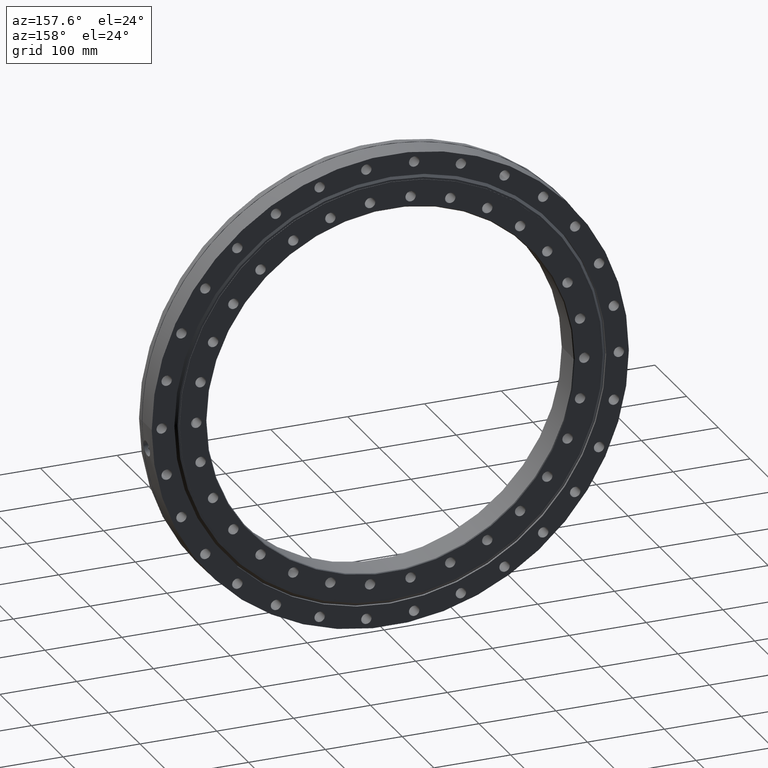
[diagram: clean part render]
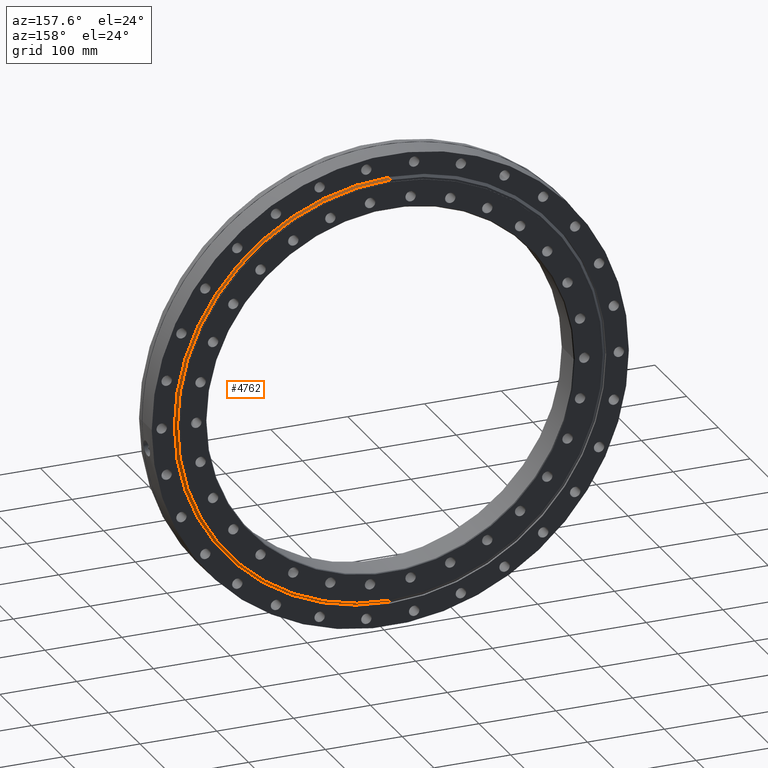
[diagram: same view with one face highlighted and labeled with its STEP entity id]
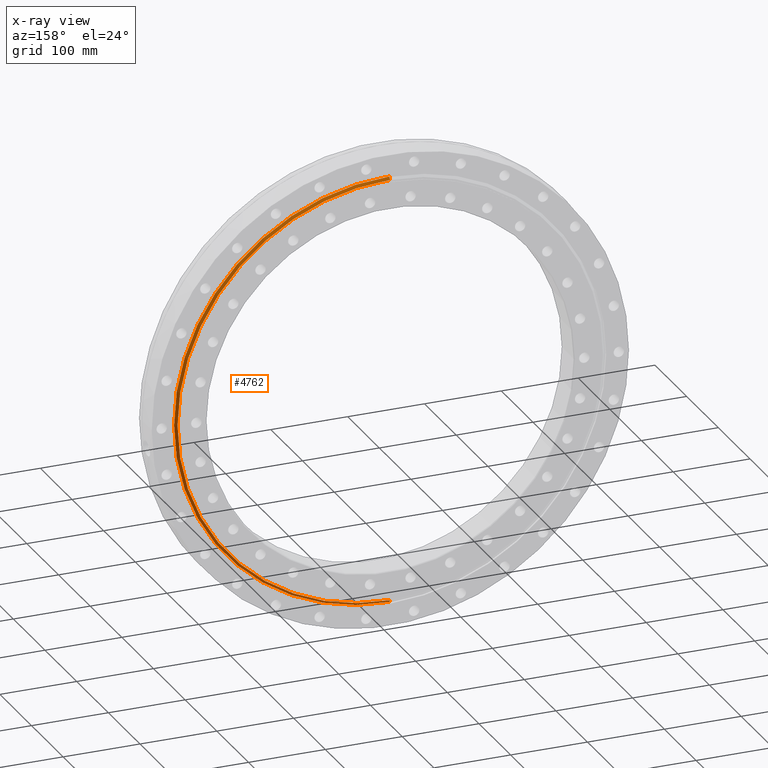
[diagram: x-ray of the same camera — body ghosted, the highlighted face saturated]
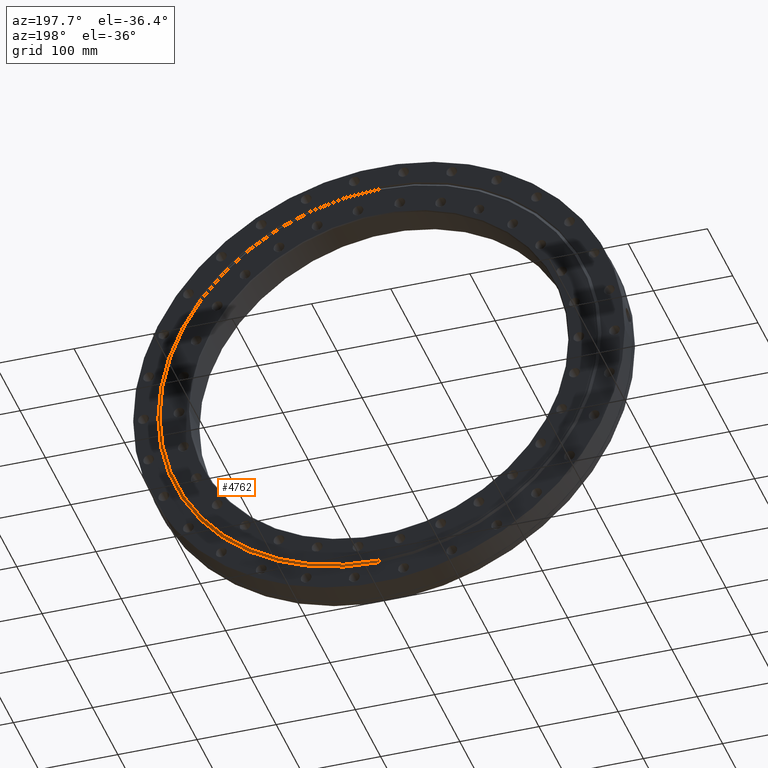
[diagram: same view with one face highlighted and labeled with its STEP entity id]
A machine part, auxiliary view. The second image highlights one B-rep face of the part: STEP entity #4762.
The next image is the same camera in x-ray: the body ghosted, the highlighted face saturated — about 0% of this face is hidden behind the body in this view.
A second angle (auxiliary view) of the same face is appended — the face is thin or edge-on in the first view.
In plain terms, the highlighted conical surface has half-angle 53.077 deg.
Its self-contained STEP definition (entity closure, byte-faithful):
#3 = CARTESIAN_POINT ( 'NONE',  ( 3.389433997422207300E-014, 19.50000000000000400, 276.7682894187992100 ) ) ;
#85 = CIRCLE ( 'NONE', #2446, 280.2282236264777600 ) ;
#198 = DIRECTION ( 'NONE',  ( 9.790312008539385100E-017, -0.6007464156942912100, 0.7994396437695980900 ) ) ;
#243 = EDGE_CURVE ( 'NONE', #518, #2261, #85, .T. ) ;
#518 = VERTEX_POINT ( 'NONE', #5785 ) ;
#616 = CARTESIAN_POINT ( 'NONE',  ( 0.0000000000000000000, 19.50000000000000400, -276.7682894187992100 ) ) ;
#687 = CIRCLE ( 'NONE', #1833, 276.7682894187992100 ) ;
#823 = VERTEX_POINT ( 'NONE', #616 ) ;
#824 = DIRECTION ( 'NONE',  ( 0.0000000000000000000, 0.0000000000000000000, -1.000000000000000000 ) ) ;
#853 = DIRECTION ( 'NONE',  ( 0.0000000000000000000, -1.000000000000000000, 0.0000000000000000000 ) ) ;
#1057 = EDGE_CURVE ( 'NONE', #1364, #2261, #3753, .T. ) ;
#1147 = CARTESIAN_POINT ( 'NONE',  ( 0.0000000000000000000, 19.50000000000000400, 0.0000000000000000000 ) ) ;
#1364 = VERTEX_POINT ( 'NONE', #5428 ) ;
#1573 = VECTOR ( 'NONE', #9095, 1000.000000000000000 ) ;
#1699 = VECTOR ( 'NONE', #198, 1000.000000000000000 ) ;
#1833 = AXIS2_PLACEMENT_3D ( 'NONE', #5654, #5645, #5625 ) ;
#2261 = VERTEX_POINT ( 'NONE', #8492 ) ;
#2338 = EDGE_CURVE ( 'NONE', #823, #1364, #687, .T. ) ;
#2446 = AXIS2_PLACEMENT_3D ( 'NONE', #8474, #8445, #8277 ) ;
#2467 = ORIENTED_EDGE ( 'NONE', *, *, #2338, .T. ) ;
#2562 = CONICAL_SURFACE ( 'NONE', #3006, 276.7682894187992100, 0.9263618715724253300 ) ;
#3006 = AXIS2_PLACEMENT_3D ( 'NONE', #1147, #853, #824 ) ;
#3753 = LINE ( 'NONE', #3, #1699 ) ;
#4106 = CARTESIAN_POINT ( 'NONE',  ( 0.0000000000000000000, 19.50000000000000400, -276.7682894187992100 ) ) ;
#4762 = ADVANCED_FACE ( 'NONE', ( #8223 ), #2562, .T. ) ;
#5428 = CARTESIAN_POINT ( 'NONE',  ( 3.410619984185677200E-014, 19.50000000000000400, 276.7682894187987000 ) ) ;
#5625 = DIRECTION ( 'NONE',  ( 0.0000000000000000000, 0.0000000000000000000, -1.000000000000000000 ) ) ;
#5645 = DIRECTION ( 'NONE',  ( 0.0000000000000000000, -1.000000000000000000, 0.0000000000000000000 ) ) ;
#5654 = CARTESIAN_POINT ( 'NONE',  ( 0.0000000000000000000, 19.50000000000000400, 0.0000000000000000000 ) ) ;
#5785 = CARTESIAN_POINT ( 'NONE',  ( 0.0000000000000000000, 16.90000000000000600, -280.2282236264777600 ) ) ;
#5829 = ORIENTED_EDGE ( 'NONE', *, *, #1057, .T. ) ;
#6281 = ORIENTED_EDGE ( 'NONE', *, *, #243, .F. ) ;
#6936 = EDGE_LOOP ( 'NONE', ( #2467, #5829, #6281, #7811 ) ) ;
#6950 = LINE ( 'NONE', #4106, #1573 ) ;
#7811 = ORIENTED_EDGE ( 'NONE', *, *, #8424, .F. ) ;
#8223 = FACE_OUTER_BOUND ( 'NONE', #6936, .T. ) ;
#8277 = DIRECTION ( 'NONE',  ( 0.0000000000000000000, 0.0000000000000000000, -1.000000000000000000 ) ) ;
#8424 = EDGE_CURVE ( 'NONE', #823, #518, #6950, .T. ) ;
#8445 = DIRECTION ( 'NONE',  ( 0.0000000000000000000, -1.000000000000000000, 0.0000000000000000000 ) ) ;
#8474 = CARTESIAN_POINT ( 'NONE',  ( 0.0000000000000000000, 16.90000000000000600, 0.0000000000000000000 ) ) ;
#8492 = CARTESIAN_POINT ( 'NONE',  ( 3.431805970949147200E-014, 16.90000000000000600, 280.2282236264777600 ) ) ;
#9095 = DIRECTION ( 'NONE',  ( 0.0000000000000000000, -0.6007464156942912100, -0.7994396437695980900 ) ) ;